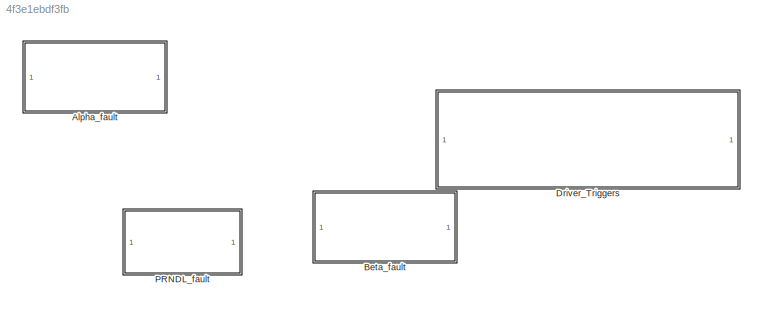
MODEL slx_4f3e1ebdf3fb
KIND model
CONFIG AbsTol = auto
CONFIG FixedStep = auto
CONFIG MaxStep = auto
CONFIG MinStep = auto
CONFIG RelTol = 1e-3
CONFIG SampleTimeConstraint = Unconstrained
CONFIG Solver = VariableStepAuto
CONFIG SolverMode = Auto
CONFIG SolverName = VariableStepAuto
CONFIG StartTime = 0.0
CONFIG StopTime = 10.0
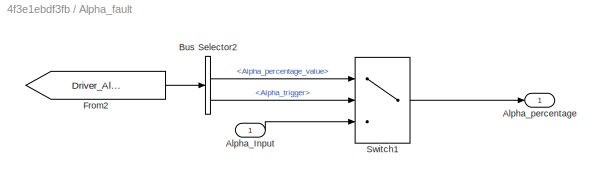
BLOCK [SubSystem] Alpha_fault
  Ports = [1, 1]
  RequestExecContextInheritance = off
  Variant = off
BLOCK [Inport] Alpha_fault/Alpha_Input
  IconDisplay = Port number
BLOCK [Outport] Alpha_fault/Alpha_percentage
  IconDisplay = Port number
BLOCK [BusSelector] Alpha_fault/Bus Selector2
  OutputSignals = Alpha_percentage_value,Alpha_trigger
  Ports = [1, 2]
BLOCK [From] Alpha_fault/From2
  GotoTag = Driver_Alpha_fault
BLOCK [Switch] Alpha_fault/Switch1
  Criteria = u2 > Threshold
  InputSameDT = off
  SaturateOnIntegerOverflow = off
  Threshold = 0.5
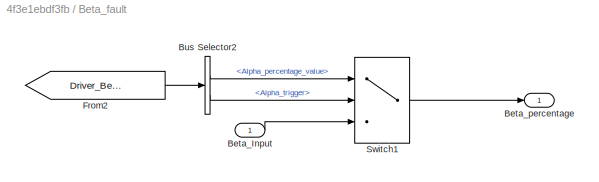
BLOCK [SubSystem] Beta_fault
  Ports = [1, 1]
  RequestExecContextInheritance = off
  Variant = off
BLOCK [Inport] Beta_fault/Beta_Input
  IconDisplay = Port number
BLOCK [Outport] Beta_fault/Beta_percentage
  IconDisplay = Port number
BLOCK [BusSelector] Beta_fault/Bus Selector2
  OutputSignals = Alpha_percentage_value,Alpha_trigger
  Ports = [1, 2]
BLOCK [From] Beta_fault/From2
  GotoTag = Driver_Beta_fault
BLOCK [Switch] Beta_fault/Switch1
  Criteria = u2 > Threshold
  InputSameDT = off
  SaturateOnIntegerOverflow = off
  Threshold = 0.5
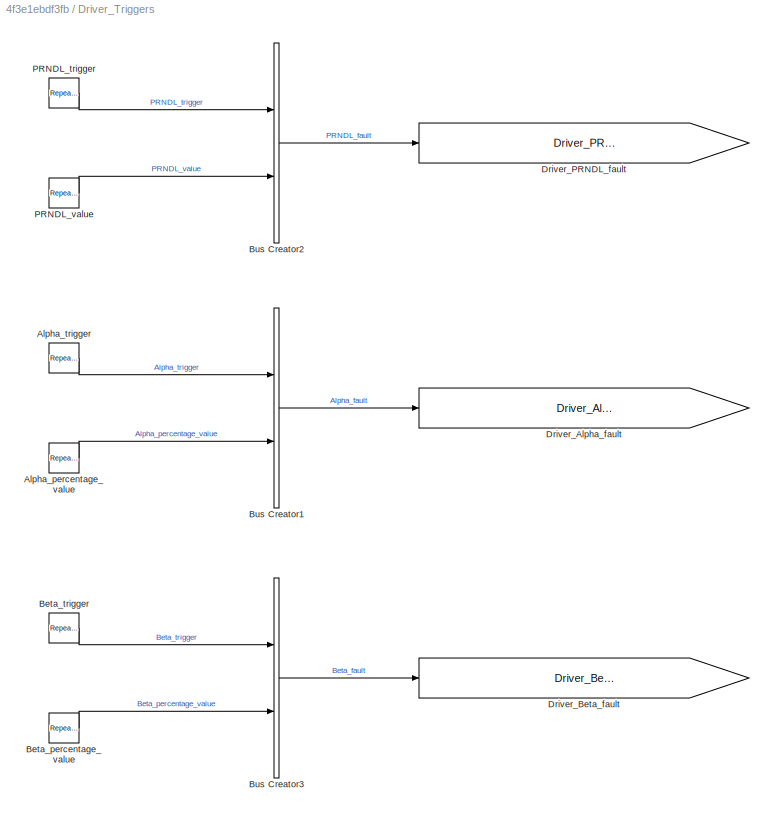
BLOCK [SubSystem] Driver_Triggers
  Ports = []
  RequestExecContextInheritance = off
  Variant = off
BLOCK [Reference] Driver_Triggers/Alpha_percentage_value  REF=simulink/Sources/Repeating
Sequence
  Ports = [0, 1]
  SourceBlock = simulink/Sources/Repeating\nSequence
  SourceType = Repeating table
BLOCK [Reference] Driver_Triggers/Alpha_trigger  REF=simulink/Sources/Repeating
Sequence
  Ports = [0, 1]
  SourceBlock = simulink/Sources/Repeating\nSequence
  SourceType = Repeating table
BLOCK [Reference] Driver_Triggers/Beta_percentage_value  REF=simulink/Sources/Repeating
Sequence
  Ports = [0, 1]
  SourceBlock = simulink/Sources/Repeating\nSequence
  SourceType = Repeating table
BLOCK [Reference] Driver_Triggers/Beta_trigger  REF=simulink/Sources/Repeating
Sequence
  Ports = [0, 1]
  SourceBlock = simulink/Sources/Repeating\nSequence
  SourceType = Repeating table
BLOCK [BusCreator] Driver_Triggers/Bus Creator1
  DisplayOption = bar
  InheritFromInputs = on
  Inputs = 2
  Ports = [2, 1]
BLOCK [BusCreator] Driver_Triggers/Bus Creator2
  DisplayOption = bar
  InheritFromInputs = on
  Inputs = 2
  Ports = [2, 1]
BLOCK [BusCreator] Driver_Triggers/Bus Creator3
  DisplayOption = bar
  InheritFromInputs = on
  Inputs = 2
  Ports = [2, 1]
BLOCK [Goto] Driver_Triggers/Driver_Alpha_fault
  GotoTag = Driver_Alpha_fault
  TagVisibility = global
BLOCK [Goto] Driver_Triggers/Driver_Beta_fault
  GotoTag = Driver_Beta_fault
  TagVisibility = global
BLOCK [Goto] Driver_Triggers/Driver_PRNDL_fault
  GotoTag = Driver_PRNDL_fault
  TagVisibility = global
BLOCK [Reference] Driver_Triggers/PRNDL_trigger  REF=simulink/Sources/Repeating
Sequence
  Ports = [0, 1]
  SourceBlock = simulink/Sources/Repeating\nSequence
  SourceType = Repeating table
BLOCK [Reference] Driver_Triggers/PRNDL_value  REF=simulink/Sources/Repeating
Sequence
  Ports = [0, 1]
  SourceBlock = simulink/Sources/Repeating\nSequence
  SourceType = Repeating table
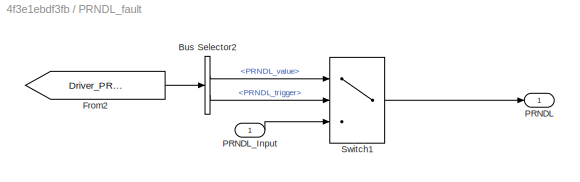
BLOCK [SubSystem] PRNDL_fault
  Ports = [1, 1]
  RequestExecContextInheritance = off
  Variant = off
BLOCK [BusSelector] PRNDL_fault/Bus Selector2
  OutputSignals = PRNDL_value,PRNDL_trigger
  Ports = [1, 2]
BLOCK [From] PRNDL_fault/From2
  GotoTag = Driver_PRNDL_fault
BLOCK [Outport] PRNDL_fault/PRNDL
  IconDisplay = Port number
BLOCK [Inport] PRNDL_fault/PRNDL_Input
  IconDisplay = Port number
BLOCK [Switch] PRNDL_fault/Switch1
  Criteria = u2 > Threshold
  InputSameDT = off
  SaturateOnIntegerOverflow = off
  Threshold = 0.5
LINE Alpha_fault/Alpha_Input:1 -> Alpha_fault/Switch1:3
LINE Alpha_fault/Bus Selector2:1 -> Alpha_fault/Switch1:1
LINE Alpha_fault/Bus Selector2:2 -> Alpha_fault/Switch1:2
LINE Alpha_fault/From2:1 -> Alpha_fault/Bus Selector2:1
LINE Alpha_fault/Switch1:1 -> Alpha_fault/Alpha_percentage:1
LINE Beta_fault/Beta_Input:1 -> Beta_fault/Switch1:3
LINE Beta_fault/Bus Selector2:1 -> Beta_fault/Switch1:1
LINE Beta_fault/Bus Selector2:2 -> Beta_fault/Switch1:2
LINE Beta_fault/From2:1 -> Beta_fault/Bus Selector2:1
LINE Beta_fault/Switch1:1 -> Beta_fault/Beta_percentage:1
LINE Driver_Triggers/Alpha_percentage_value:1 -> Driver_Triggers/Bus Creator1:2
LINE Driver_Triggers/Alpha_trigger:1 -> Driver_Triggers/Bus Creator1:1
LINE Driver_Triggers/Beta_percentage_value:1 -> Driver_Triggers/Bus Creator3:2
LINE Driver_Triggers/Beta_trigger:1 -> Driver_Triggers/Bus Creator3:1
LINE Driver_Triggers/Bus Creator1:1 -> Driver_Triggers/Driver_Alpha_fault:1
LINE Driver_Triggers/Bus Creator2:1 -> Driver_Triggers/Driver_PRNDL_fault:1
LINE Driver_Triggers/Bus Creator3:1 -> Driver_Triggers/Driver_Beta_fault:1
LINE Driver_Triggers/PRNDL_trigger:1 -> Driver_Triggers/Bus Creator2:1
LINE Driver_Triggers/PRNDL_value:1 -> Driver_Triggers/Bus Creator2:2
LINE PRNDL_fault/Bus Selector2:1 -> PRNDL_fault/Switch1:1
LINE PRNDL_fault/Bus Selector2:2 -> PRNDL_fault/Switch1:2
LINE PRNDL_fault/From2:1 -> PRNDL_fault/Bus Selector2:1
LINE PRNDL_fault/PRNDL_Input:1 -> PRNDL_fault/Switch1:3
LINE PRNDL_fault/Switch1:1 -> PRNDL_fault/PRNDL:1
